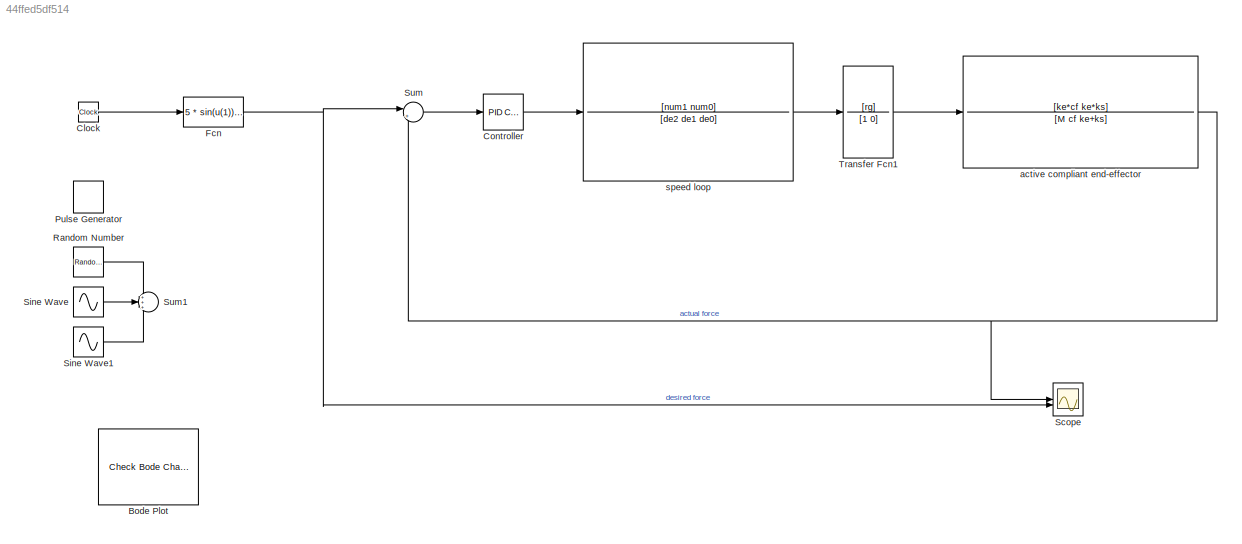
MODEL slx_44ffed5df514
KIND model
CONFIG AbsTol = auto
CONFIG EnableMultiTasking = off
CONFIG FixedStep = auto
CONFIG MaxStep = auto
CONFIG MinStep = auto
CONFIG RelTol = 1e-3
CONFIG SampleTimeConstraint = Unconstrained
CONFIG SolverName = VariableStepAuto
CONFIG StartTime = 0.0
CONFIG StopTime = 20
BLOCK [Reference] Bode Plot  REF=slctrl_linear/Check Bode 
Characteristics
  InstantiateOnLoad = on
  LibrarySourceBlock = slctrlblks/Linear Analysis Plots/Bode Plot
  SourceBlock = slctrl_linear/Check Bode \nCharacteristics
  SourceType = Checks_Bode
BLOCK [Clock] Clock
BLOCK [Reference] Controller  REF=slpidlib/PID Controller
  LibrarySourceBlock = simulink/Continuous/PID Controller
  SourceBlock = slpidlib/PID Controller
  SourceType = PID 1dof
BLOCK [Fcn] Fcn
  Expr = 5 * sin(u(1)) + 8  * sin(3*u(1) + 2) + 0.2 * u(1) * exp(2*cos(4*u(1)))
BLOCK [DiscretePulseGenerator] Pulse Generator
  Amplitude = 5
  Period = 100
  PhaseDelay = 2.5
  PulseType = Time based
  PulseWidth = 95
BLOCK [RandomNumber] Random Number
  SampleTime = 0.1
  Variance = 0.1
BLOCK [Scope] Scope
  Floating = off
  NumInputPorts = 2
  ScopeSpecificationString = Simulink.scopes.TimeScopeBlockCfg('CurrentConfiguration', extmgr.ConfigurationSet(extmgr.Configuration('Core','General UI',true),extmgr.Configuration('Core','Source UI',true),extmgr.Configuration('Sources','WiredSimulink',true,'DataLoggingSaveFormat','Array','DataLoggingLimitDataPoints',true,'DataLoggingDecimation','1'),extmgr.Configuration('Visuals','Time Domain',true,'SerializedDisplays',{struct...<+1923ch>
BLOCK [Sin] Sine Wave
  Frequency = 0.5
  Phase = 3
  SampleTime = 0
BLOCK [Sin] Sine Wave1
  Amplitude = 3
  Frequency = 2
  Phase = 5
  SampleTime = 0
BLOCK [Sum] Sum
  Inputs = |+-
BLOCK [Sum] Sum1
  Inputs = +++
BLOCK [TransferFcn] Transfer Fcn1
  Denominator = [1 0]
  Numerator = [rg]
BLOCK [TransferFcn] active compliant end-effector
  Denominator = [M cf ke+ks]
  Numerator = [ke*cf ke*ks]
BLOCK [TransferFcn] speed loop
  Denominator = [de2 de1 de0]
  Numerator = [num1 num0]
LINE Clock:1 -> Fcn:1
LINE Controller:1 -> speed loop:1
NET Fcn:1 -> Scope:2, Sum:1
LINE Random Number:1 -> Sum1:1
LINE Sine Wave1:1 -> Sum1:3
LINE Sine Wave:1 -> Sum1:2
LINE Sum:1 -> Controller:1
LINE Transfer Fcn1:1 -> active compliant end-effector:1
NET active compliant end-effector:1 -> Scope:1, Sum:2
LINE speed loop:1 -> Transfer Fcn1:1
note: NET lines group one-source signal fan-out (src -> all destinations, sorted); 1:1 wires keep LINE
